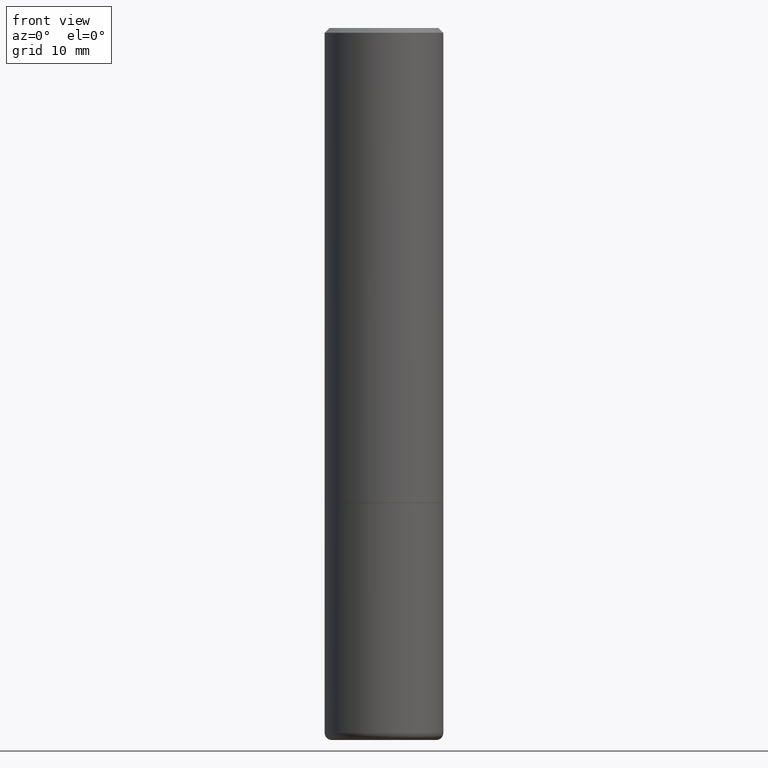
[diagram: clean part render]
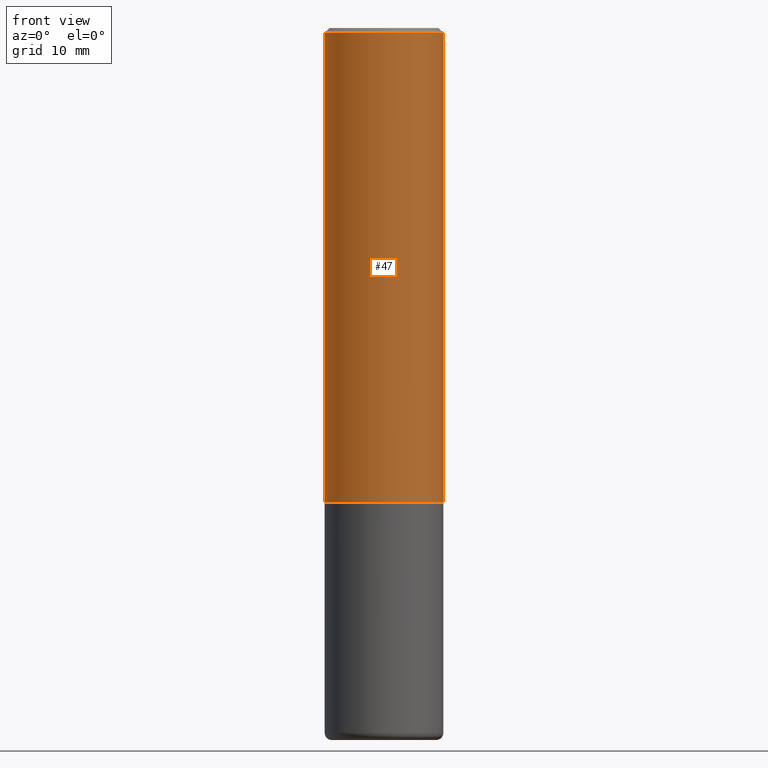
[diagram: same view with one face highlighted and labeled with its STEP entity id]
A machine part, front view. The second image highlights one B-rep face of the part: STEP entity #47.
In plain terms, the highlighted cylindrical surface (partial cylindrical patch) has radius 6.35 mm, axis along (-0, 0, 1).
Its self-contained STEP definition (entity closure, byte-faithful):
#4 = ORIENTED_EDGE ( 'NONE', *, *, #157, .F. ) ;
#8 = LINE ( 'NONE', #270, #181 ) ;
#25 = EDGE_CURVE ( 'NONE', #39, #113, #370, .T. ) ;
#39 = VERTEX_POINT ( 'NONE', #146 ) ;
#45 = DIRECTION ( 'NONE',  ( -2.445468806185136597E-29, 3.491481338843145583E-15, 1.000000000000000000 ) ) ;
#47 = ADVANCED_FACE ( 'NONE', ( #149 ), #334, .T. ) ;
#56 = CIRCLE ( 'NONE', #131, 0.2499999999999999722 ) ;
#113 = VERTEX_POINT ( 'NONE', #180 ) ;
#119 = CARTESIAN_POINT ( 'NONE',  ( 0.000000000000000000, 0.000000000000000000, 0.000000000000000000 ) ) ;
#131 = AXIS2_PLACEMENT_3D ( 'NONE', #156, #380, #281 ) ;
#134 = VERTEX_POINT ( 'NONE', #410 ) ;
#136 = VECTOR ( 'NONE', #234, 39.37007874015748143 ) ;
#146 = CARTESIAN_POINT ( 'NONE',  ( 0.2500000000000002220, -8.725211865769017202E-15, -1.999000000000000110 ) ) ;
#149 = FACE_OUTER_BOUND ( 'NONE', #328, .T. ) ;
#156 = CARTESIAN_POINT ( 'NONE',  ( 4.890937612370296805E-31, -6.982962677686323656E-17, -0.02000000000000009409 ) ) ;
#157 = EDGE_CURVE ( 'NONE', #324, #113, #56, .T. ) ;
#161 = ORIENTED_EDGE ( 'NONE', *, *, #25, .T. ) ;
#180 = CARTESIAN_POINT ( 'NONE',  ( 0.2499999999999999722, -1.784954126219746189E-15, -0.02000000000000009409 ) ) ;
#181 = VECTOR ( 'NONE', #392, 39.37007874015748143 ) ;
#207 = CARTESIAN_POINT ( 'NONE',  ( 4.888492143564088712E-29, -6.979471196347448158E-15, -1.999000000000000110 ) ) ;
#208 = DIRECTION ( 'NONE',  ( -2.445468806185136597E-29, 3.491481338843145583E-15, 1.000000000000000000 ) ) ;
#222 = CIRCLE ( 'NONE', #332, 0.2500000000000002220 ) ;
#234 = DIRECTION ( 'NONE',  ( -2.445468806185136877E-29, 3.491481338843145188E-15, 1.000000000000000000 ) ) ;
#236 = ORIENTED_EDGE ( 'NONE', *, *, #358, .F. ) ;
#242 = DIRECTION ( 'NONE',  ( 1.000000000000000000, -6.982962677686266711E-15, 4.876176775795935793E-29 ) ) ;
#253 = AXIS2_PLACEMENT_3D ( 'NONE', #119, #208, #242 ) ;
#259 = ORIENTED_EDGE ( 'NONE', *, *, #346, .T. ) ;
#270 = CARTESIAN_POINT ( 'NONE',  ( -0.2500000000000001110, 1.776356839400251254E-15, -1.229733772563727006E-29 ) ) ;
#281 = DIRECTION ( 'NONE',  ( 1.000000000000000000, -6.982962677686266711E-15, 0.000000000000000000 ) ) ;
#306 = DIRECTION ( 'NONE',  ( 1.000000000000000000, -6.982962677686268288E-15, 0.000000000000000000 ) ) ;
#324 = VERTEX_POINT ( 'NONE', #393 ) ;
#328 = EDGE_LOOP ( 'NONE', ( #236, #259, #161, #4 ) ) ;
#332 = AXIS2_PLACEMENT_3D ( 'NONE', #207, #45, #306 ) ;
#334 = CYLINDRICAL_SURFACE ( 'NONE', #253, 0.2500000000000001110 ) ;
#346 = EDGE_CURVE ( 'NONE', #134, #39, #222, .T. ) ;
#358 = EDGE_CURVE ( 'NONE', #134, #324, #8, .T. ) ;
#364 = CARTESIAN_POINT ( 'NONE',  ( 0.2500000000000001110, -1.745740669421567467E-15, 1.219044193948984509E-29 ) ) ;
#370 = LINE ( 'NONE', #364, #136 ) ;
#380 = DIRECTION ( 'NONE',  ( -2.445468806185136597E-29, 3.491481338843145583E-15, 1.000000000000000000 ) ) ;
#392 = DIRECTION ( 'NONE',  ( -2.445468806185136877E-29, 3.491481338843145188E-15, 1.000000000000000000 ) ) ;
#393 = CARTESIAN_POINT ( 'NONE',  ( -0.2499999999999999722, 1.675911042644703182E-15, -0.02000000000000009409 ) ) ;
#410 = CARTESIAN_POINT ( 'NONE',  ( -0.2500000000000002220, -1.748293572161903489E-15, -1.999000000000000110 ) ) ;